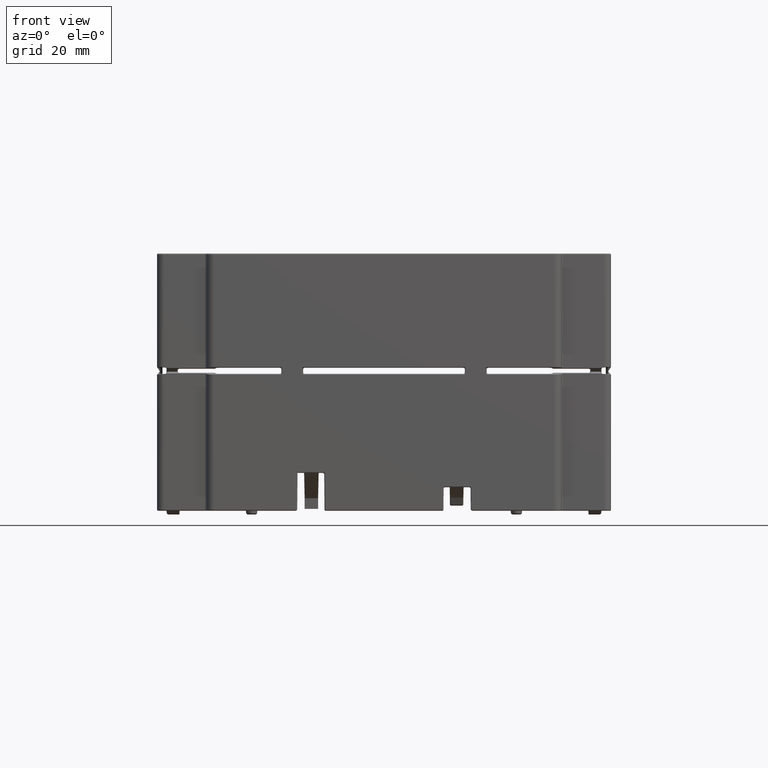
[diagram: clean part render]
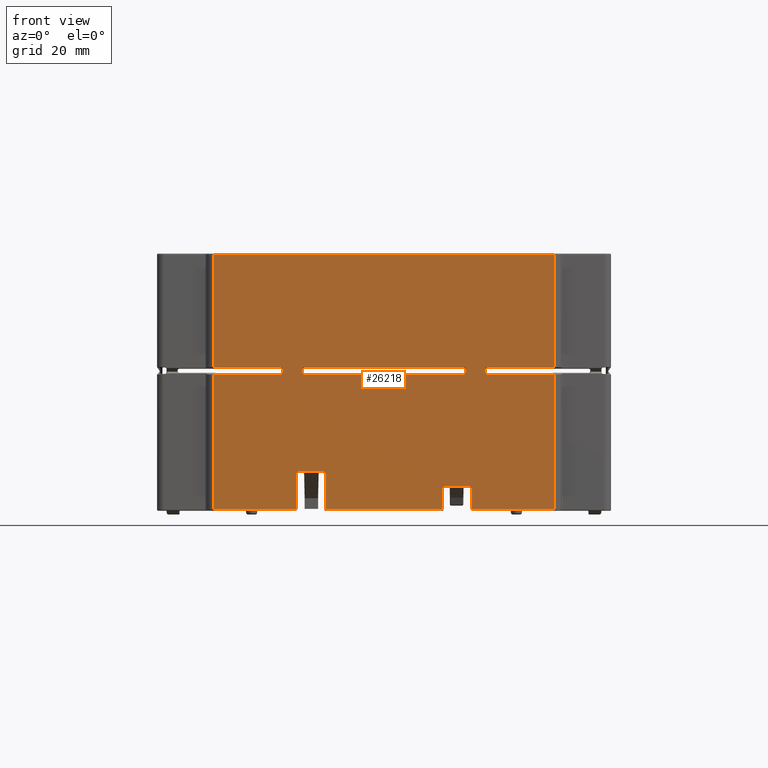
[diagram: same view with one face highlighted and labeled with its STEP entity id]
A machine part, front view. The second image highlights one B-rep face of the part: STEP entity #26218.
In plain terms, the highlighted planar face has unit normal (0, 1, 0).
Its self-contained STEP definition (entity closure, byte-faithful):
#2=CARTESIAN_POINT('',(2.343292428321E1,6.569437771553E-10,-2.95E1));
#3=DIRECTION('',(0.E0,1.E0,0.E0));
#4=DIRECTION('',(-1.776533190838E-14,0.E0,-1.E0));
#5=AXIS2_PLACEMENT_3D('',#2,#3,#4);
#7=DIRECTION('',(-8.727759371413E-3,0.E0,9.999619123828E-1));
#8=VECTOR('',#7,5.407187118297E0);
#9=CARTESIAN_POINT('',(2.323293851613E1,1.918187830796E-12,-2.950174524935E1));
#10=LINE('',#9,#8);
#11=CARTESIAN_POINT('',(2.258576873443E1,5.600850894183E-10,-2.41E1));
#12=DIRECTION('',(0.E0,-1.E0,0.E0));
#13=DIRECTION('',(9.999619230545E-1,0.E0,8.726536601941E-3));
#14=AXIS2_PLACEMENT_3D('',#11,#12,#13);
#16=CARTESIAN_POINT('',(1.606423126557E1,5.600794827920E-10,-2.41E1));
#17=DIRECTION('',(0.E0,-1.E0,0.E0));
#18=DIRECTION('',(2.833316514048E-10,0.E0,1.E0));
#19=AXIS2_PLACEMENT_3D('',#16,#17,#18);
#21=DIRECTION('',(-8.727625585559E-3,-1.248591305888E-12,-9.999619135505E-1));
#22=VECTOR('',#21,5.605449359748E0);
#23=CARTESIAN_POINT('',(1.546426022216E1,2.801264775698E-11,-2.409476413192E1));
#24=LINE('',#23,#22);
#25=DIRECTION('',(-8.726535498793E-3,1.182393382817E-13,9.999619230642E-1));
#26=VECTOR('',#25,1.000038078386E1);
#27=CARTESIAN_POINT('',(-1.541533795891E1,1.816755079709E-12,-2.97E1));
#28=LINE('',#27,#26);
#29=DIRECTION('',(-8.726535498648E-3,0.E0,-9.999619230642E-1));
#30=VECTOR('',#29,9.802118617585E0);
#31=CARTESIAN_POINT('',(-2.314739336318E1,-3.330184276488E-11,-1.97E1));
#32=LINE('',#31,#30);
#33=CARTESIAN_POINT('',(-2.343292428321E1,6.574393252023E-10,-2.95E1));
#34=DIRECTION('',(0.E0,1.E0,0.E0));
#35=DIRECTION('',(9.999619230642E-1,0.E0,-8.726535499730E-3));
#36=AXIS2_PLACEMENT_3D('',#33,#34,#35);
#38=DIRECTION('',(-1.E0,0.E0,0.E0));
#39=VECTOR('',#38,9.E1);
#40=CARTESIAN_POINT('',(4.5E1,7.593925488436E-14,3.77E1));
#41=LINE('',#40,#39);
#61=DIRECTION('',(0.E0,0.E0,-1.E0));
#62=VECTOR('',#61,2.97E1);
#63=CARTESIAN_POINT('',(-4.5E1,-3.974598428158E-14,3.77E1));
#64=LINE('',#63,#62);
#77=DIRECTION('',(1.E0,-1.019860222898E-14,2.168340160158E-14));
#78=VECTOR('',#77,1.769524377958E1);
#79=CARTESIAN_POINT('',(-4.5E1,2.398081733190E-14,8.E0));
#80=LINE('',#79,#78);
#684=DIRECTION('',(1.E0,6.226583352330E-13,-4.839789270510E-14));
#685=VECTOR('',#684,3.083067591782E1);
#686=CARTESIAN_POINT('',(-1.541533795891E1,1.816755079709E-12,-2.97E1));
#687=LINE('',#686,#685);
#5797=DIRECTION('',(1.E0,-2.862961280630E-11,-1.114864183261E-11));
#5798=VECTOR('',#5797,6.521537468714E0);
#5799=CARTESIAN_POINT('',(1.606423126569E1,1.866929203824E-10,
-2.350000611080E1));
#5800=LINE('',#5799,#5798);
#5829=DIRECTION('',(1.E0,0.E0,0.E0));
#5830=VECTOR('',#5829,2.156707577184E1);
#5831=CARTESIAN_POINT('',(2.343292422669E1,0.E0,-2.97E1));
#5832=LINE('',#5831,#5830);
#6479=DIRECTION('',(4.117644911624E-11,0.E0,1.E0));
#6480=VECTOR('',#6479,3.57E1);
#6481=CARTESIAN_POINT('',(4.499999999853E1,-1.314087727522E-13,-2.97E1));
#6482=LINE('',#6481,#6480);
#6495=DIRECTION('',(-1.E0,-1.524405037364E-14,0.E0));
#6496=VECTOR('',#6495,1.769524377958E1);
#6497=CARTESIAN_POINT('',(4.5E1,2.398081733190E-14,6.E0));
#6498=LINE('',#6497,#6496);
#6669=DIRECTION('',(1.E0,-1.533397960482E-14,0.E0));
#6670=VECTOR('',#6669,1.769524377958E1);
#6671=CARTESIAN_POINT('',(2.730475622042E1,2.626047527580E-13,8.E0));
#6672=LINE('',#6671,#6670);
#6812=DIRECTION('',(0.E0,0.E0,1.E0));
#6813=VECTOR('',#6812,2.97E1);
#6814=CARTESIAN_POINT('',(4.5E1,0.E0,8.E0));
#6815=LINE('',#6814,#6813);
#8444=DIRECTION('',(-1.E0,1.814479092488E-14,0.E0));
#8445=VECTOR('',#8444,1.769524377827E1);
#8446=CARTESIAN_POINT('',(-2.730475622042E1,-3.301063126552E-13,6.E0));
#8447=LINE('',#8446,#8445);
#8454=CARTESIAN_POINT('',(-2.690627834119E1,0.E0,6.398477879236E0));
#8455=CARTESIAN_POINT('',(-2.690627834119E1,0.E0,6.265651919494E0));
#8456=CARTESIAN_POINT('',(-2.700650936517E1,0.E0,6.100231023981E0));
#8457=CARTESIAN_POINT('',(-2.717193026068E1,0.E0,6.000000000004E0));
#8458=CARTESIAN_POINT('',(-2.730475622042E1,0.E0,6.E0));
#8464=DIRECTION('',(-4.665902897623E-13,-6.646020048994E-14,-1.E0));
#8465=VECTOR('',#8464,1.203044241526E0);
#8466=CARTESIAN_POINT('',(-2.690627834119E1,4.612976667318E-14,
7.601522120763E0));
#8467=LINE('',#8466,#8465);
#8476=CARTESIAN_POINT('',(-2.730475622042E1,0.E0,8.000000000001E0));
#8477=CARTESIAN_POINT('',(-2.717193026067E1,0.E0,8.E0));
#8478=CARTESIAN_POINT('',(-2.700650936516E1,0.E0,7.899768976023E0));
#8479=CARTESIAN_POINT('',(-2.690627834118E1,0.E0,7.734348080508E0));
#8480=CARTESIAN_POINT('',(-2.690627834118E1,0.E0,7.601522120763E0));
#8505=DIRECTION('',(3.574776329293E-10,0.E0,-1.E0));
#8506=VECTOR('',#8505,3.57E1);
#8507=CARTESIAN_POINT('',(-4.499999999869E1,0.E0,6.E0));
#8508=LINE('',#8507,#8506);
#8559=DIRECTION('',(1.E0,0.E0,3.069634435562E-7));
#8560=VECTOR('',#8559,2.156707570272E1);
#8561=CARTESIAN_POINT('',(-4.499999998593E1,-1.200844979010E-13,-2.97E1));
#8562=LINE('',#8561,#8560);
#17054=DIRECTION('',(-1.E0,0.E0,0.E0));
#17055=VECTOR('',#17054,4.239048755915E1);
#17056=CARTESIAN_POINT('',(2.119524377958E1,-3.303283572601E-13,6.E0));
#17057=LINE('',#17056,#17055);
#17058=CARTESIAN_POINT('',(-2.119524377958E1,0.E0,6.E0));
#17059=CARTESIAN_POINT('',(-2.132806973933E1,0.E0,6.E0));
#17060=CARTESIAN_POINT('',(-2.149349063484E1,0.E0,6.100231023977E0));
#17061=CARTESIAN_POINT('',(-2.159372165882E1,0.E0,6.265651919491E0));
#17062=CARTESIAN_POINT('',(-2.159372165882E1,0.E0,6.398477879237E0));
#17072=DIRECTION('',(-3.127336182645E-12,4.987514282078E-13,1.E0));
#17073=VECTOR('',#17072,1.203044241527E0);
#17074=CARTESIAN_POINT('',(-2.159372165881E1,5.982251731022E-14,
6.398477879237E0));
#17075=LINE('',#17074,#17073);
#17076=CARTESIAN_POINT('',(-2.159372165883E1,0.E0,7.601522120763E0));
#17077=CARTESIAN_POINT('',(-2.159372165883E1,0.E0,7.734348080512E0));
#17078=CARTESIAN_POINT('',(-2.149349063485E1,0.E0,7.899768976027E0));
#17079=CARTESIAN_POINT('',(-2.132806973933E1,0.E0,8.000000000003E0));
#17080=CARTESIAN_POINT('',(-2.119524377958E1,0.E0,8.E0));
#17086=DIRECTION('',(1.E0,0.E0,1.340947512846E-14));
#17087=VECTOR('',#17086,4.239048755916E1);
#17088=CARTESIAN_POINT('',(-2.119524377958E1,2.622346784165E-13,8.E0));
#17089=LINE('',#17088,#17087);
#17094=CARTESIAN_POINT('',(2.119524377958E1,0.E0,8.000000000001E0));
#17095=CARTESIAN_POINT('',(2.132806973933E1,0.E0,8.E0));
#17096=CARTESIAN_POINT('',(2.149349063484E1,0.E0,7.899768976023E0));
#17097=CARTESIAN_POINT('',(2.159372165882E1,0.E0,7.734348080508E0));
#17098=CARTESIAN_POINT('',(2.159372165882E1,0.E0,7.601522120763E0));
#17104=DIRECTION('',(-4.636371866625E-13,-6.667553092430E-14,-1.E0));
#17105=VECTOR('',#17104,1.203044241526E0);
#17106=CARTESIAN_POINT('',(2.159372165881E1,4.594472950240E-14,
7.601522120763E0));
#17107=LINE('',#17106,#17105);
#17112=CARTESIAN_POINT('',(2.159372165881E1,0.E0,6.398477879236E0));
#17113=CARTESIAN_POINT('',(2.159372165881E1,0.E0,6.265651919494E0));
#17114=CARTESIAN_POINT('',(2.149349063483E1,0.E0,6.100231023981E0));
#17115=CARTESIAN_POINT('',(2.132806973932E1,0.E0,6.000000000004E0));
#17116=CARTESIAN_POINT('',(2.119524377958E1,0.E0,6.E0));
#19536=CARTESIAN_POINT('',(2.690627834117E1,0.E0,7.601522120764E0));
#19537=CARTESIAN_POINT('',(2.690627834117E1,0.E0,7.734348080513E0));
#19538=CARTESIAN_POINT('',(2.700650936515E1,0.E0,7.899768976027E0));
#19539=CARTESIAN_POINT('',(2.717193026067E1,0.E0,8.000000000003E0));
#19540=CARTESIAN_POINT('',(2.730475622042E1,0.E0,8.E0));
#19554=DIRECTION('',(-5.164977321478E-12,4.991051853498E-13,1.E0));
#19555=VECTOR('',#19554,1.203044241527E0);
#19556=CARTESIAN_POINT('',(2.690627834119E1,5.924890208083E-14,
6.398477879237E0));
#19557=LINE('',#19556,#19555);
#19558=CARTESIAN_POINT('',(2.730475622042E1,0.E0,6.E0));
#19559=CARTESIAN_POINT('',(2.717193026067E1,0.E0,6.000000000001E0));
#19560=CARTESIAN_POINT('',(2.700650936516E1,0.E0,6.100231023977E0));
#19561=CARTESIAN_POINT('',(2.690627834118E1,0.E0,6.265651919491E0));
#19562=CARTESIAN_POINT('',(2.690627834118E1,0.E0,6.398477879237E0));
#20667=DIRECTION('',(1.E0,4.748469453815E-12,0.E0));
#20668=VECTOR('',#20667,7.644786726357E0);
#20669=CARTESIAN_POINT('',(-2.314739336318E1,-3.330184276488E-11,-1.97E1));
#20670=LINE('',#20669,#20668);
#20883=CARTESIAN_POINT('',(-2.159372165881E1,5.982251731022E-14,
6.398477879237E0));
#20884=CARTESIAN_POINT('',(-2.159372165882E1,6.598425509689E-13,
7.601522120764E0));
#20885=VERTEX_POINT('',#20883);
#20886=VERTEX_POINT('',#20884);
#20887=CARTESIAN_POINT('',(2.159372165881E1,4.594472950240E-14,
7.601522120763E0));
#20888=CARTESIAN_POINT('',(2.159372165881E1,-3.426888402676E-14,
6.398477879237E0));
#20889=VERTEX_POINT('',#20887);
#20890=VERTEX_POINT('',#20888);
#20891=CARTESIAN_POINT('',(2.690627834119E1,5.924890208083E-14,
6.398477879237E0));
#20892=CARTESIAN_POINT('',(2.690627834118E1,6.596945212323E-13,
7.601522120764E0));
#20893=VERTEX_POINT('',#20891);
#20894=VERTEX_POINT('',#20892);
#20895=CARTESIAN_POINT('',(-2.690627834119E1,4.612976667318E-14,
7.601522120763E0));
#20896=CARTESIAN_POINT('',(-2.690627834119E1,-3.382479481691E-14,
6.398477879237E0));
#20897=VERTEX_POINT('',#20895);
#20898=VERTEX_POINT('',#20896);
#20900=CARTESIAN_POINT('',(-2.119524377958E1,2.620126338115E-13,8.E0));
#20902=VERTEX_POINT('',#20900);
#20904=CARTESIAN_POINT('',(2.119524377958E1,-1.564859353209E-13,8.E0));
#20905=VERTEX_POINT('',#20904);
#20908=CARTESIAN_POINT('',(-4.5E1,2.398081733190E-14,8.E0));
#20909=CARTESIAN_POINT('',(-2.730475622042E1,-1.564859353209E-13,8.E0));
#20910=VERTEX_POINT('',#20908);
#20911=VERTEX_POINT('',#20909);
#20920=CARTESIAN_POINT('',(2.730475622042E1,2.626047527580E-13,8.E0));
#20921=CARTESIAN_POINT('',(4.5E1,0.E0,8.E0));
#20922=VERTEX_POINT('',#20920);
#20923=VERTEX_POINT('',#20921);
#20927=CARTESIAN_POINT('',(2.119524377958E1,-3.304023721284E-13,6.E0));
#20929=VERTEX_POINT('',#20927);
#20933=CARTESIAN_POINT('',(-2.119524377958E1,-2.462474668619E-13,6.E0));
#20934=VERTEX_POINT('',#20933);
#20939=CARTESIAN_POINT('',(-2.730475622042E1,-3.301063126552E-13,6.E0));
#20940=CARTESIAN_POINT('',(-4.499999999869E1,0.E0,6.E0));
#20941=VERTEX_POINT('',#20939);
#20942=VERTEX_POINT('',#20940);
#20943=CARTESIAN_POINT('',(4.5E1,2.398081733190E-14,6.E0));
#20944=CARTESIAN_POINT('',(2.730475622042E1,-2.457663702179E-13,6.E0));
#20945=VERTEX_POINT('',#20943);
#20946=VERTEX_POINT('',#20944);
#23967=CARTESIAN_POINT('',(-1.541533795891E1,0.E0,-2.97E1));
#23968=VERTEX_POINT('',#23967);
#23969=CARTESIAN_POINT('',(1.541533795891E1,2.101373242080E-11,-2.97E1));
#23970=VERTEX_POINT('',#23969);
#24417=CARTESIAN_POINT('',(-2.323293189991E1,-9.990652749536E-11,
-2.950174545839E1));
#24418=VERTEX_POINT('',#24417);
#24419=CARTESIAN_POINT('',(-2.343292428321E1,6.574393252023E-10,
-2.969998013909E1));
#24420=VERTEX_POINT('',#24419);
#24421=CARTESIAN_POINT('',(-2.314739336318E1,-3.330184276488E-11,-1.97E1));
#24422=VERTEX_POINT('',#24421);
#24423=CARTESIAN_POINT('',(-1.550260663682E1,2.999193486157E-12,-1.97E1));
#24424=VERTEX_POINT('',#24423);
#25608=CARTESIAN_POINT('',(4.5E1,0.E0,-2.97E1));
#25609=VERTEX_POINT('',#25608);
#25610=CARTESIAN_POINT('',(2.343292422669E1,0.E0,-2.97E1));
#25611=VERTEX_POINT('',#25610);
#25612=CARTESIAN_POINT('',(2.323295175128E1,6.569437771553E-10,
-2.950174513385E1));
#25613=VERTEX_POINT('',#25612);
#25616=CARTESIAN_POINT('',(2.318574588809E1,1.898148305202E-12,
-2.409476407792E1));
#25617=VERTEX_POINT('',#25616);
#25620=CARTESIAN_POINT('',(2.258576873443E1,5.600850894183E-10,
-2.350001833248E1));
#25621=VERTEX_POINT('',#25620);
#25636=CARTESIAN_POINT('',(1.606423126574E1,5.600794827920E-10,
-2.350001833197E1));
#25637=CARTESIAN_POINT('',(1.546427244300E1,5.600794827920E-10,
-2.409476423868E1));
#25638=VERTEX_POINT('',#25636);
#25639=VERTEX_POINT('',#25637);
#25655=CARTESIAN_POINT('',(4.5E1,0.E0,3.77E1));
#25656=VERTEX_POINT('',#25655);
#25659=CARTESIAN_POINT('',(-4.5E1,-3.974598428158E-14,3.77E1));
#25660=VERTEX_POINT('',#25659);
#25845=CARTESIAN_POINT('',(-4.5E1,0.E0,-2.97E1));
#25846=VERTEX_POINT('',#25845);
#26137=CARTESIAN_POINT('',(0.E0,0.E0,4.E0));
#26138=DIRECTION('',(0.E0,1.E0,0.E0));
#26139=DIRECTION('',(1.E0,0.E0,0.E0));
#26140=AXIS2_PLACEMENT_3D('',#26137,#26138,#26139);
#26141=PLANE('',#26140);
#26143=ORIENTED_EDGE('',*,*,#26142,.F.);
#26145=ORIENTED_EDGE('',*,*,#26144,.F.);
#26147=ORIENTED_EDGE('',*,*,#26146,.F.);
#26149=ORIENTED_EDGE('',*,*,#26148,.F.);
#26151=ORIENTED_EDGE('',*,*,#26150,.F.);
#26153=ORIENTED_EDGE('',*,*,#26152,.F.);
#26155=ORIENTED_EDGE('',*,*,#26154,.F.);
#26157=ORIENTED_EDGE('',*,*,#26156,.F.);
#26159=ORIENTED_EDGE('',*,*,#26158,.F.);
#26161=ORIENTED_EDGE('',*,*,#26160,.T.);
#26163=ORIENTED_EDGE('',*,*,#26162,.T.);
#26165=ORIENTED_EDGE('',*,*,#26164,.T.);
#26167=ORIENTED_EDGE('',*,*,#26166,.F.);
#26169=ORIENTED_EDGE('',*,*,#26168,.T.);
#26171=ORIENTED_EDGE('',*,*,#26170,.T.);
#26173=ORIENTED_EDGE('',*,*,#26172,.F.);
#26175=ORIENTED_EDGE('',*,*,#26174,.T.);
#26177=ORIENTED_EDGE('',*,*,#26176,.F.);
#26179=ORIENTED_EDGE('',*,*,#26178,.T.);
#26181=ORIENTED_EDGE('',*,*,#26180,.T.);
#26183=ORIENTED_EDGE('',*,*,#26182,.F.);
#26185=ORIENTED_EDGE('',*,*,#26184,.F.);
#26187=ORIENTED_EDGE('',*,*,#26186,.F.);
#26189=ORIENTED_EDGE('',*,*,#26188,.F.);
#26191=ORIENTED_EDGE('',*,*,#26190,.F.);
#26193=ORIENTED_EDGE('',*,*,#26192,.F.);
#26195=ORIENTED_EDGE('',*,*,#26194,.F.);
#26197=ORIENTED_EDGE('',*,*,#26196,.F.);
#26198=EDGE_LOOP('',(#26143,#26145,#26147,#26149,#26151,#26153,#26155,#26157,
#26159,#26161,#26163,#26165,#26167,#26169,#26171,#26173,#26175,#26177,#26179,
#26181,#26183,#26185,#26187,#26189,#26191,#26193,#26195,#26197));
#26199=FACE_OUTER_BOUND('',#26198,.F.);
#26201=ORIENTED_EDGE('',*,*,#26200,.F.);
#26203=ORIENTED_EDGE('',*,*,#26202,.F.);
#26205=ORIENTED_EDGE('',*,*,#26204,.F.);
#26207=ORIENTED_EDGE('',*,*,#26206,.F.);
#26209=ORIENTED_EDGE('',*,*,#26208,.F.);
#26211=ORIENTED_EDGE('',*,*,#26210,.F.);
#26213=ORIENTED_EDGE('',*,*,#26212,.F.);
#26215=ORIENTED_EDGE('',*,*,#26214,.F.);
#26216=EDGE_LOOP('',(#26201,#26203,#26205,#26207,#26209,#26211,#26213,#26215));
#26217=FACE_BOUND('',#26216,.F.);
#26218=ADVANCED_FACE('',(#26199,#26217),#26141,.F.);
#6=CIRCLE('',#5,1.999801465643E-1);
#15=CIRCLE('',#14,5.999816675212E-1);
#20=CIRCLE('',#19,5.999816680348E-1);
#37=CIRCLE('',#36,1.999801390885E-1);
#8459=B_SPLINE_CURVE_WITH_KNOTS('',3,(#8454,#8455,#8456,#8457,#8458),
.UNSPECIFIED.,.F.,.F.,(4,1,4),(0.E0,5.E-1,1.E0),.UNSPECIFIED.);
#8481=B_SPLINE_CURVE_WITH_KNOTS('',3,(#8476,#8477,#8478,#8479,#8480),
.UNSPECIFIED.,.F.,.F.,(4,1,4),(0.E0,5.E-1,1.E0),.UNSPECIFIED.);
#17063=B_SPLINE_CURVE_WITH_KNOTS('',3,(#17058,#17059,#17060,#17061,#17062),
.UNSPECIFIED.,.F.,.F.,(4,1,4),(0.E0,5.E-1,1.E0),.UNSPECIFIED.);
#17081=B_SPLINE_CURVE_WITH_KNOTS('',3,(#17076,#17077,#17078,#17079,#17080),
.UNSPECIFIED.,.F.,.F.,(4,1,4),(0.E0,5.E-1,1.E0),.UNSPECIFIED.);
#17099=B_SPLINE_CURVE_WITH_KNOTS('',3,(#17094,#17095,#17096,#17097,#17098),
.UNSPECIFIED.,.F.,.F.,(4,1,4),(0.E0,5.E-1,1.E0),.UNSPECIFIED.);
#17117=B_SPLINE_CURVE_WITH_KNOTS('',3,(#17112,#17113,#17114,#17115,#17116),
.UNSPECIFIED.,.F.,.F.,(4,1,4),(0.E0,5.E-1,1.E0),.UNSPECIFIED.);
#19541=B_SPLINE_CURVE_WITH_KNOTS('',3,(#19536,#19537,#19538,#19539,#19540),
.UNSPECIFIED.,.F.,.F.,(4,1,4),(0.E0,5.E-1,1.E0),.UNSPECIFIED.);
#19563=B_SPLINE_CURVE_WITH_KNOTS('',3,(#19558,#19559,#19560,#19561,#19562),
.UNSPECIFIED.,.F.,.F.,(4,1,4),(0.E0,5.E-1,1.E0),.UNSPECIFIED.);
#26142=EDGE_CURVE('',#25656,#25660,#41,.T.);
#26144=EDGE_CURVE('',#20923,#25656,#6815,.T.);
#26146=EDGE_CURVE('',#20922,#20923,#6672,.T.);
#26148=EDGE_CURVE('',#20894,#20922,#19541,.T.);
#26150=EDGE_CURVE('',#20893,#20894,#19557,.T.);
#26152=EDGE_CURVE('',#20946,#20893,#19563,.T.);
#26154=EDGE_CURVE('',#20945,#20946,#6498,.T.);
#26156=EDGE_CURVE('',#25609,#20945,#6482,.T.);
#26158=EDGE_CURVE('',#25611,#25609,#5832,.T.);
#26160=EDGE_CURVE('',#25611,#25613,#6,.T.);
#26162=EDGE_CURVE('',#25613,#25617,#10,.T.);
#26164=EDGE_CURVE('',#25617,#25621,#15,.T.);
#26166=EDGE_CURVE('',#25638,#25621,#5800,.T.);
#26168=EDGE_CURVE('',#25638,#25639,#20,.T.);
#26170=EDGE_CURVE('',#25639,#23970,#24,.T.);
#26172=EDGE_CURVE('',#23968,#23970,#687,.T.);
#26174=EDGE_CURVE('',#23968,#24424,#28,.T.);
#26176=EDGE_CURVE('',#24422,#24424,#20670,.T.);
#26178=EDGE_CURVE('',#24422,#24418,#32,.T.);
#26180=EDGE_CURVE('',#24418,#24420,#37,.T.);
#26182=EDGE_CURVE('',#25846,#24420,#8562,.T.);
#26184=EDGE_CURVE('',#20942,#25846,#8508,.T.);
#26186=EDGE_CURVE('',#20941,#20942,#8447,.T.);
#26188=EDGE_CURVE('',#20898,#20941,#8459,.T.);
#26190=EDGE_CURVE('',#20897,#20898,#8467,.T.);
#26192=EDGE_CURVE('',#20911,#20897,#8481,.T.);
#26194=EDGE_CURVE('',#20910,#20911,#80,.T.);
#26196=EDGE_CURVE('',#25660,#20910,#64,.T.);
#26200=EDGE_CURVE('',#20885,#20886,#17075,.T.);
#26202=EDGE_CURVE('',#20934,#20885,#17063,.T.);
#26204=EDGE_CURVE('',#20929,#20934,#17057,.T.);
#26206=EDGE_CURVE('',#20890,#20929,#17117,.T.);
#26208=EDGE_CURVE('',#20889,#20890,#17107,.T.);
#26210=EDGE_CURVE('',#20905,#20889,#17099,.T.);
#26212=EDGE_CURVE('',#20902,#20905,#17089,.T.);
#26214=EDGE_CURVE('',#20886,#20902,#17081,.T.);